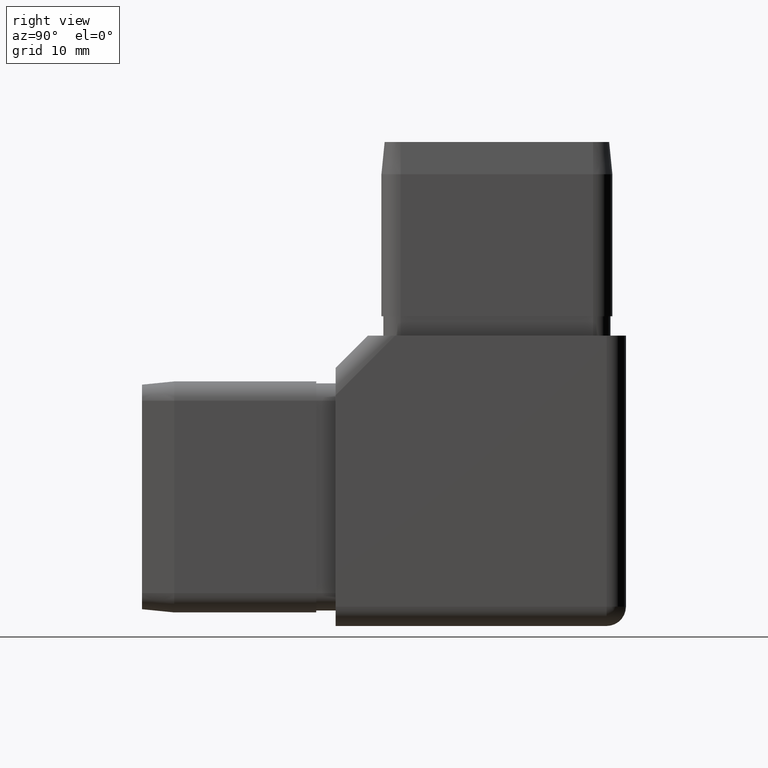
[diagram: clean part render]
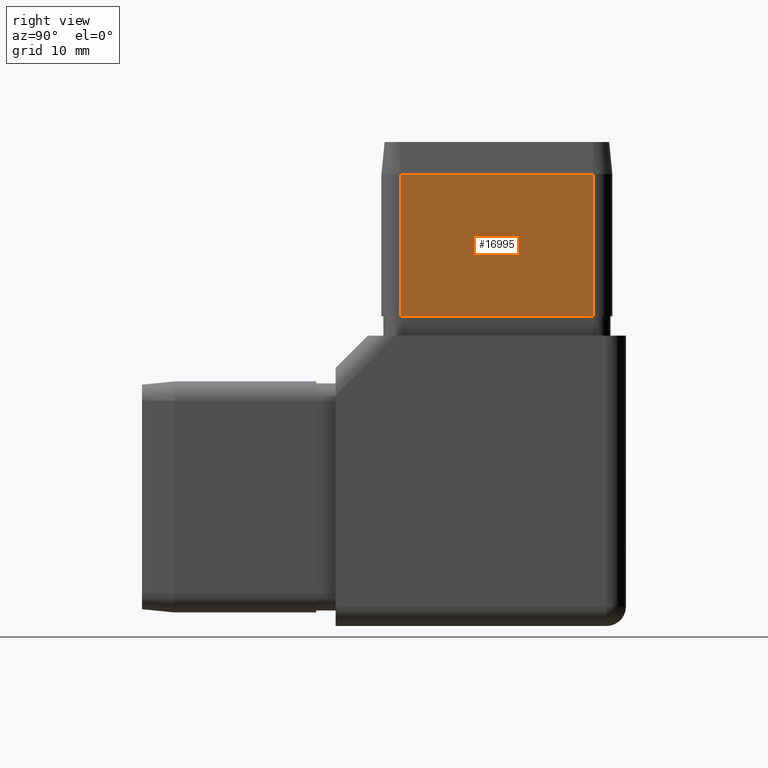
[diagram: same view with one face highlighted and labeled with its STEP entity id]
A machine part, right view. The second image highlights one B-rep face of the part: STEP entity #16995.
In plain terms, the highlighted planar face has unit normal (-1, 0, 0).
Its self-contained STEP definition (entity closure, byte-faithful):
#1558 = DIRECTION ( 'NONE',  ( 0.0000000000000000000, -1.000000000000000000, 0.0000000000000000000 ) ) ;
#1992 = ORIENTED_EDGE ( 'NONE', *, *, #4957, .T. ) ;
#2308 = CARTESIAN_POINT ( 'NONE',  ( 17.90000000000001300, 17.39999999999999900, 25.50000000000000000 ) ) ;
#4513 = ORIENTED_EDGE ( 'NONE', *, *, #20822, .F. ) ;
#4957 = EDGE_CURVE ( 'NONE', #21745, #20190, #22994, .T. ) ;
#5977 = VERTEX_POINT ( 'NONE', #2308 ) ;
#6495 = VERTEX_POINT ( 'NONE', #24875 ) ;
#7130 = ORIENTED_EDGE ( 'NONE', *, *, #18404, .T. ) ;
#7141 = PLANE ( 'NONE',  #23448 ) ;
#7224 = CARTESIAN_POINT ( 'NONE',  ( 17.90000000000000600, -12.39999999999999900, 52.50000000000000000 ) ) ;
#8104 = CARTESIAN_POINT ( 'NONE',  ( 17.90000000000000600, 17.39999999999999900, 47.50000000000000000 ) ) ;
#8786 = VECTOR ( 'NONE', #9386, 1000.000000000000000 ) ;
#9386 = DIRECTION ( 'NONE',  ( -0.0000000000000000000, -0.0000000000000000000, 1.000000000000000000 ) ) ;
#9466 = CARTESIAN_POINT ( 'NONE',  ( 17.90000000000000600, 17.39999999999999900, 52.50000000000000000 ) ) ;
#10285 = LINE ( 'NONE', #8104, #10926 ) ;
#10926 = VECTOR ( 'NONE', #1558, 1000.000000000000000 ) ;
#10951 = CARTESIAN_POINT ( 'NONE',  ( 17.90000000000000600, 20.39999999999999900, 52.50000000000000000 ) ) ;
#11098 = FACE_OUTER_BOUND ( 'NONE', #19463, .T. ) ;
#13281 = DIRECTION ( 'NONE',  ( 0.0000000000000000000, 0.0000000000000000000, 1.000000000000000000 ) ) ;
#14718 = CARTESIAN_POINT ( 'NONE',  ( 17.90000000000001300, 17.39999999999999900, 25.50000000000000000 ) ) ;
#14725 = VECTOR ( 'NONE', #19047, 1000.000000000000000 ) ;
#15142 = DIRECTION ( 'NONE',  ( 0.0000000000000000000, 0.0000000000000000000, -1.000000000000000000 ) ) ;
#15586 = VECTOR ( 'NONE', #15142, 1000.000000000000000 ) ;
#15737 = CARTESIAN_POINT ( 'NONE',  ( 17.90000000000000600, -12.39999999999998400, 47.50000000000000000 ) ) ;
#15782 = ORIENTED_EDGE ( 'NONE', *, *, #26679, .T. ) ;
#16995 = ADVANCED_FACE ( 'NONE', ( #11098 ), #7141, .F. ) ;
#17338 = LINE ( 'NONE', #14718, #14725 ) ;
#18404 = EDGE_CURVE ( 'NONE', #5977, #6495, #20384, .T. ) ;
#19047 = DIRECTION ( 'NONE',  ( 0.0000000000000000000, -1.000000000000000000, 0.0000000000000000000 ) ) ;
#19463 = EDGE_LOOP ( 'NONE', ( #7130, #15782, #1992, #4513 ) ) ;
#20190 = VERTEX_POINT ( 'NONE', #24375 ) ;
#20384 = LINE ( 'NONE', #9466, #8786 ) ;
#20822 = EDGE_CURVE ( 'NONE', #5977, #20190, #17338, .T. ) ;
#21745 = VERTEX_POINT ( 'NONE', #15737 ) ;
#22994 = LINE ( 'NONE', #7224, #15586 ) ;
#23448 = AXIS2_PLACEMENT_3D ( 'NONE', #10951, #25306, #13281 ) ;
#24375 = CARTESIAN_POINT ( 'NONE',  ( 17.90000000000001300, -12.39999999999998400, 25.50000000000000000 ) ) ;
#24875 = CARTESIAN_POINT ( 'NONE',  ( 17.90000000000000600, 17.39999999999999900, 47.50000000000000000 ) ) ;
#25306 = DIRECTION ( 'NONE',  ( -1.000000000000000000, 0.0000000000000000000, 0.0000000000000000000 ) ) ;
#26679 = EDGE_CURVE ( 'NONE', #6495, #21745, #10285, .T. ) ;